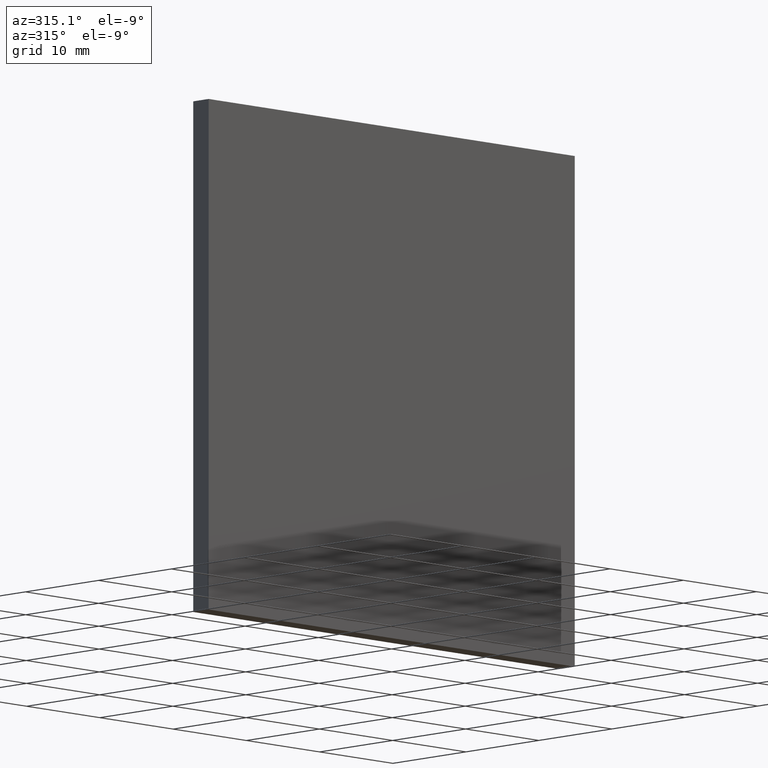
[diagram: clean part render]
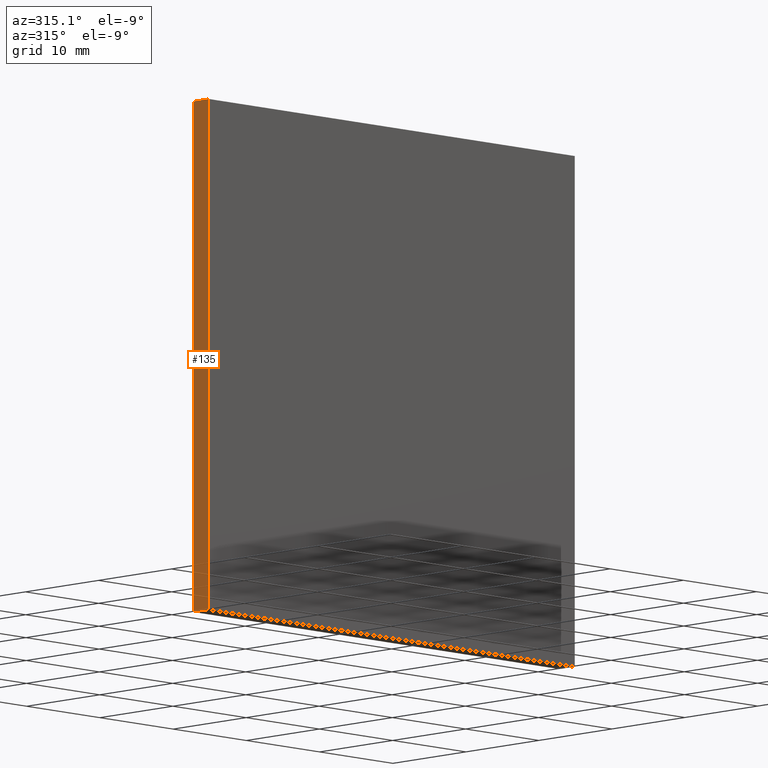
[diagram: same view with one face highlighted and labeled with its STEP entity id]
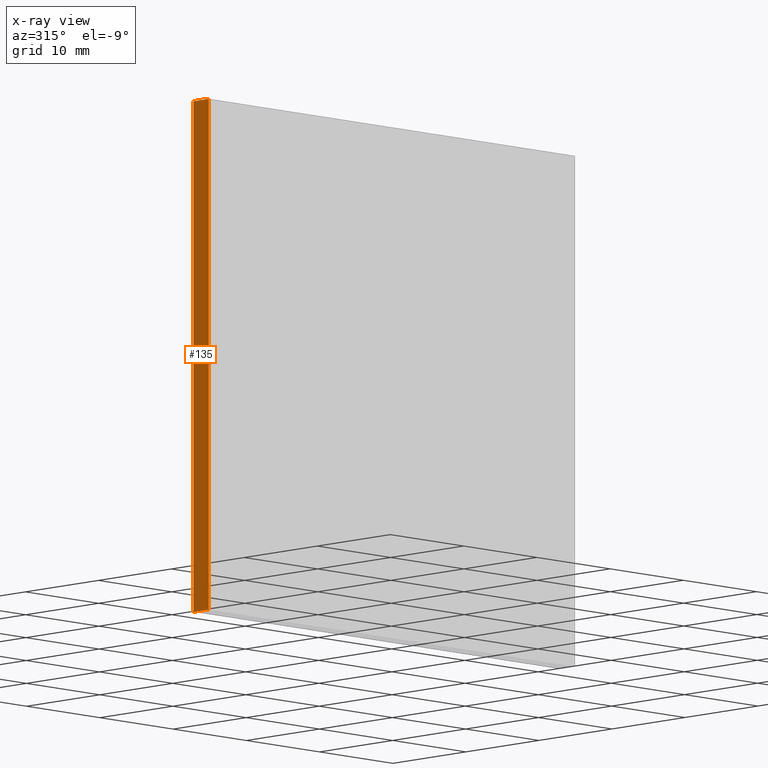
[diagram: x-ray of the same camera — body ghosted, the highlighted face saturated]
A machine part, auxiliary view. The second image highlights one B-rep face of the part: STEP entity #135.
The next image is the same camera in x-ray: the body ghosted, the highlighted face saturated — about 0% of this face is hidden behind the body in this view.
In plain terms, the highlighted planar face has unit normal (1, 0, -0).
Its self-contained STEP definition (entity closure, byte-faithful):
#9 = EDGE_LOOP ( 'NONE', ( #19, #172, #88, #100 ) ) ;
#10 = VERTEX_POINT ( 'NONE', #183 ) ;
#12 = VECTOR ( 'NONE', #29, 1000.000000000000000 ) ;
#19 = ORIENTED_EDGE ( 'NONE', *, *, #192, .T. ) ;
#20 = DIRECTION ( 'NONE',  ( 6.938893903907228400E-017, 0.0000000000000000000, 1.000000000000000000 ) ) ;
#29 = DIRECTION ( 'NONE',  ( -0.0000000000000000000, -1.000000000000000000, -0.0000000000000000000 ) ) ;
#34 = CARTESIAN_POINT ( 'NONE',  ( -24.99999999999999600, 2.109999999999999900, -25.00000000000000400 ) ) ;
#47 = VERTEX_POINT ( 'NONE', #131 ) ;
#54 = VECTOR ( 'NONE', #174, 1000.000000000000000 ) ;
#57 = EDGE_CURVE ( 'NONE', #91, #89, #103, .T. ) ;
#61 = VECTOR ( 'NONE', #79, 1000.000000000000000 ) ;
#63 = CARTESIAN_POINT ( 'NONE',  ( -24.99999999999999300, 2.109999999999999900, 24.99999999999999600 ) ) ;
#79 = DIRECTION ( 'NONE',  ( 6.938893903907228400E-017, 0.0000000000000000000, 1.000000000000000000 ) ) ;
#83 = CARTESIAN_POINT ( 'NONE',  ( -24.99999999999999600, 0.0000000000000000000, -25.00000000000000400 ) ) ;
#88 = ORIENTED_EDGE ( 'NONE', *, *, #57, .F. ) ;
#89 = VERTEX_POINT ( 'NONE', #63 ) ;
#91 = VERTEX_POINT ( 'NONE', #95 ) ;
#93 = CARTESIAN_POINT ( 'NONE',  ( -24.99999999999999300, 2.109999999999999900, 24.99999999999999600 ) ) ;
#94 = LINE ( 'NONE', #93, #54 ) ;
#95 = CARTESIAN_POINT ( 'NONE',  ( -24.99999999999999600, 2.109999999999999900, -25.00000000000000400 ) ) ;
#98 = DIRECTION ( 'NONE',  ( 1.000000000000000000, 0.0000000000000000000, -6.938893903907228400E-017 ) ) ;
#99 = EDGE_CURVE ( 'NONE', #91, #47, #167, .T. ) ;
#100 = ORIENTED_EDGE ( 'NONE', *, *, #99, .T. ) ;
#101 = CARTESIAN_POINT ( 'NONE',  ( -24.99999999999999600, 2.109999999999999900, -25.00000000000000400 ) ) ;
#103 = LINE ( 'NONE', #34, #112 ) ;
#109 = AXIS2_PLACEMENT_3D ( 'NONE', #149, #98, #168 ) ;
#112 = VECTOR ( 'NONE', #20, 1000.000000000000000 ) ;
#124 = LINE ( 'NONE', #83, #61 ) ;
#131 = CARTESIAN_POINT ( 'NONE',  ( -24.99999999999999600, 0.0000000000000000000, -25.00000000000000400 ) ) ;
#135 = ADVANCED_FACE ( 'NONE', ( #200 ), #145, .F. ) ;
#145 = PLANE ( 'NONE',  #109 ) ;
#149 = CARTESIAN_POINT ( 'NONE',  ( -24.99999999999999600, 2.109999999999999900, -25.00000000000000400 ) ) ;
#151 = EDGE_CURVE ( 'NONE', #89, #10, #94, .T. ) ;
#167 = LINE ( 'NONE', #101, #12 ) ;
#168 = DIRECTION ( 'NONE',  ( -6.938893903907228400E-017, 0.0000000000000000000, -1.000000000000000000 ) ) ;
#172 = ORIENTED_EDGE ( 'NONE', *, *, #151, .F. ) ;
#174 = DIRECTION ( 'NONE',  ( -0.0000000000000000000, -1.000000000000000000, -0.0000000000000000000 ) ) ;
#183 = CARTESIAN_POINT ( 'NONE',  ( -24.99999999999999300, 0.0000000000000000000, 24.99999999999999600 ) ) ;
#192 = EDGE_CURVE ( 'NONE', #47, #10, #124, .T. ) ;
#200 = FACE_OUTER_BOUND ( 'NONE', #9, .T. ) ;